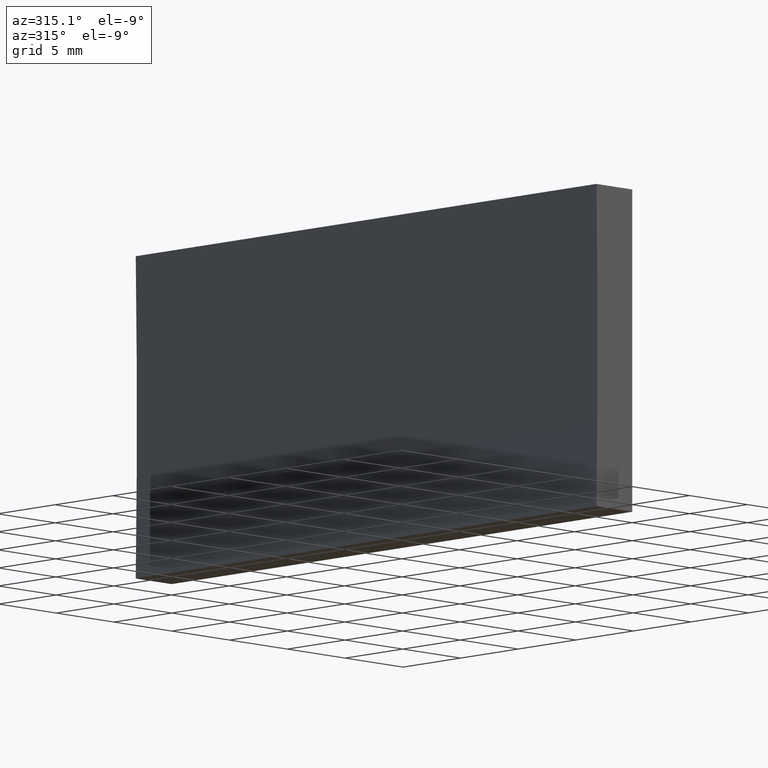
[diagram: clean part render]
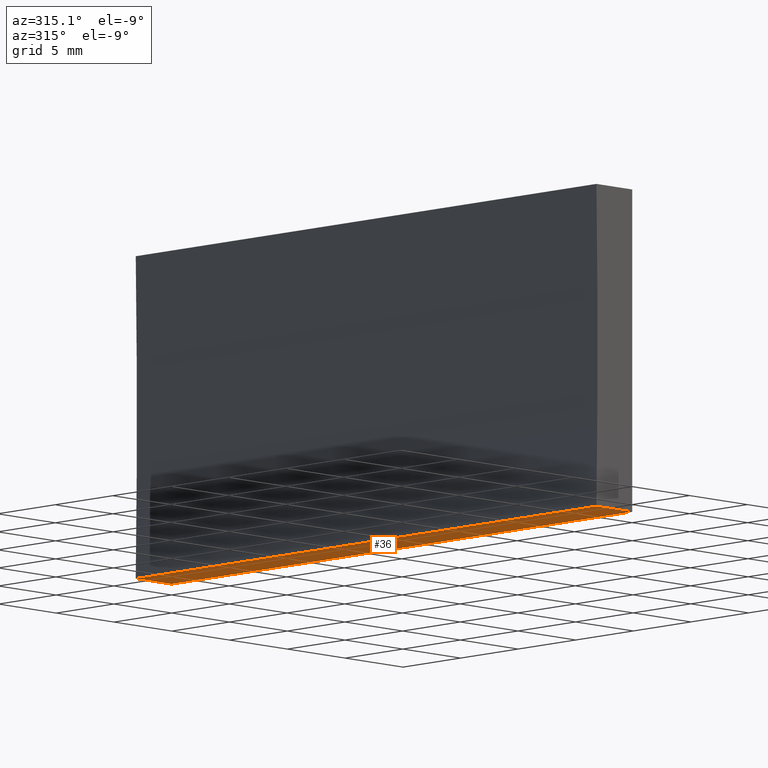
[diagram: same view with one face highlighted and labeled with its STEP entity id]
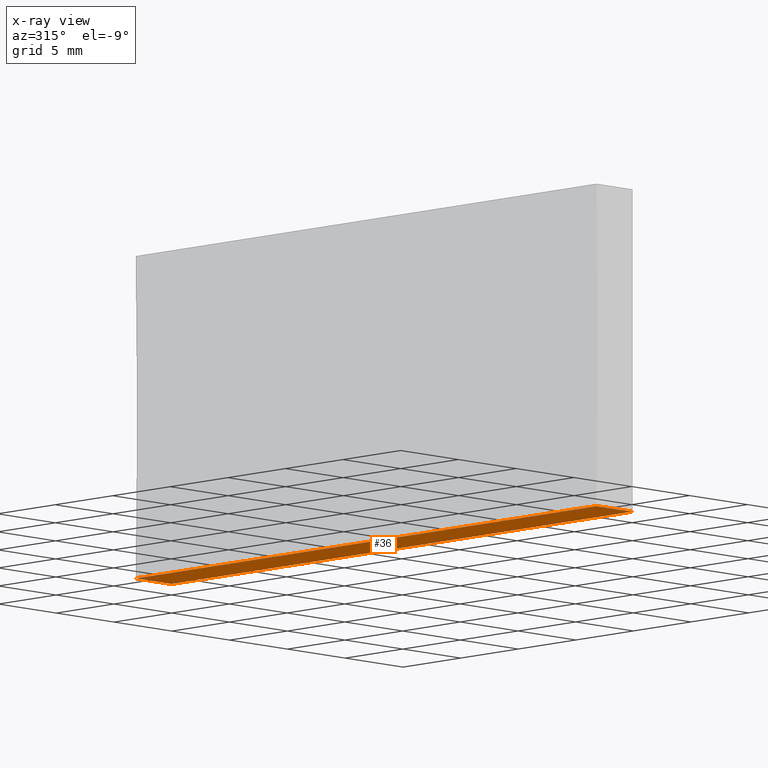
[diagram: x-ray of the same camera — body ghosted, the highlighted face saturated]
A machine part, auxiliary view. The second image highlights one B-rep face of the part: STEP entity #36.
The next image is the same camera in x-ray: the body ghosted, the highlighted face saturated — about 0% of this face is hidden behind the body in this view.
In plain terms, the highlighted planar face has unit normal (0, -0, 1).
Its self-contained STEP definition (entity closure, byte-faithful):
#3 = CARTESIAN_POINT ( 'NONE',  ( -3.096758283828826600, 40.00000000000000000, 5.204170427930421300E-014 ) ) ;
#4 = ORIENTED_EDGE ( 'NONE', *, *, #154, .F. ) ;
#5 = CARTESIAN_POINT ( 'NONE',  ( 0.0000000000000000000, 40.00000000000000000, 0.0000000000000000000 ) ) ;
#10 = VECTOR ( 'NONE', #46, 1000.000000000000000 ) ;
#13 = PLANE ( 'NONE',  #51 ) ;
#14 = LINE ( 'NONE', #71, #115 ) ;
#19 = EDGE_CURVE ( 'NONE', #52, #82, #148, .T. ) ;
#21 = CARTESIAN_POINT ( 'NONE',  ( 0.0000000000000000000, 40.00000000000000000, 0.0000000000000000000 ) ) ;
#22 = ORIENTED_EDGE ( 'NONE', *, *, #189, .T. ) ;
#23 = CARTESIAN_POINT ( 'NONE',  ( -3.096758283828826600, 0.0000000000000000000, 5.204170427930421300E-014 ) ) ;
#36 = ADVANCED_FACE ( 'NONE', ( #112 ), #13, .F. ) ;
#40 = DIRECTION ( 'NONE',  ( -0.0000000000000000000, -1.000000000000000000, -0.0000000000000000000 ) ) ;
#43 = EDGE_CURVE ( 'NONE', #52, #100, #104, .T. ) ;
#46 = DIRECTION ( 'NONE',  ( -1.000000000000000000, 0.0000000000000000000, 1.120348000704784400E-015 ) ) ;
#47 = CARTESIAN_POINT ( 'NONE',  ( 0.0000000000000000000, 40.00000000000000000, 0.0000000000000000000 ) ) ;
#49 = DIRECTION ( 'NONE',  ( 1.120348000704784400E-015, -0.0000000000000000000, 1.000000000000000000 ) ) ;
#51 = AXIS2_PLACEMENT_3D ( 'NONE', #190, #49, #150 ) ;
#52 = VERTEX_POINT ( 'NONE', #5 ) ;
#53 = DIRECTION ( 'NONE',  ( -1.000000000000000000, 0.0000000000000000000, 1.120348000704784400E-015 ) ) ;
#71 = CARTESIAN_POINT ( 'NONE',  ( 0.0000000000000000000, 0.0000000000000000000, 0.0000000000000000000 ) ) ;
#72 = CARTESIAN_POINT ( 'NONE',  ( 0.0000000000000000000, 0.0000000000000000000, 0.0000000000000000000 ) ) ;
#81 = ORIENTED_EDGE ( 'NONE', *, *, #19, .T. ) ;
#82 = VERTEX_POINT ( 'NONE', #72 ) ;
#95 = CARTESIAN_POINT ( 'NONE',  ( -3.096758283828826600, 40.00000000000000000, 5.204170427930421300E-014 ) ) ;
#100 = VERTEX_POINT ( 'NONE', #95 ) ;
#104 = LINE ( 'NONE', #47, #10 ) ;
#112 = FACE_OUTER_BOUND ( 'NONE', #126, .T. ) ;
#115 = VECTOR ( 'NONE', #53, 1000.000000000000000 ) ;
#123 = VERTEX_POINT ( 'NONE', #23 ) ;
#126 = EDGE_LOOP ( 'NONE', ( #22, #4, #139, #81 ) ) ;
#129 = DIRECTION ( 'NONE',  ( -0.0000000000000000000, -1.000000000000000000, -0.0000000000000000000 ) ) ;
#134 = VECTOR ( 'NONE', #129, 1000.000000000000000 ) ;
#135 = VECTOR ( 'NONE', #40, 1000.000000000000000 ) ;
#139 = ORIENTED_EDGE ( 'NONE', *, *, #43, .F. ) ;
#148 = LINE ( 'NONE', #21, #135 ) ;
#150 = DIRECTION ( 'NONE',  ( 1.000000000000000000, 0.0000000000000000000, -1.120348000704784400E-015 ) ) ;
#154 = EDGE_CURVE ( 'NONE', #100, #123, #167, .T. ) ;
#167 = LINE ( 'NONE', #3, #134 ) ;
#189 = EDGE_CURVE ( 'NONE', #82, #123, #14, .T. ) ;
#190 = CARTESIAN_POINT ( 'NONE',  ( 0.0000000000000000000, 40.00000000000000000, 0.0000000000000000000 ) ) ;